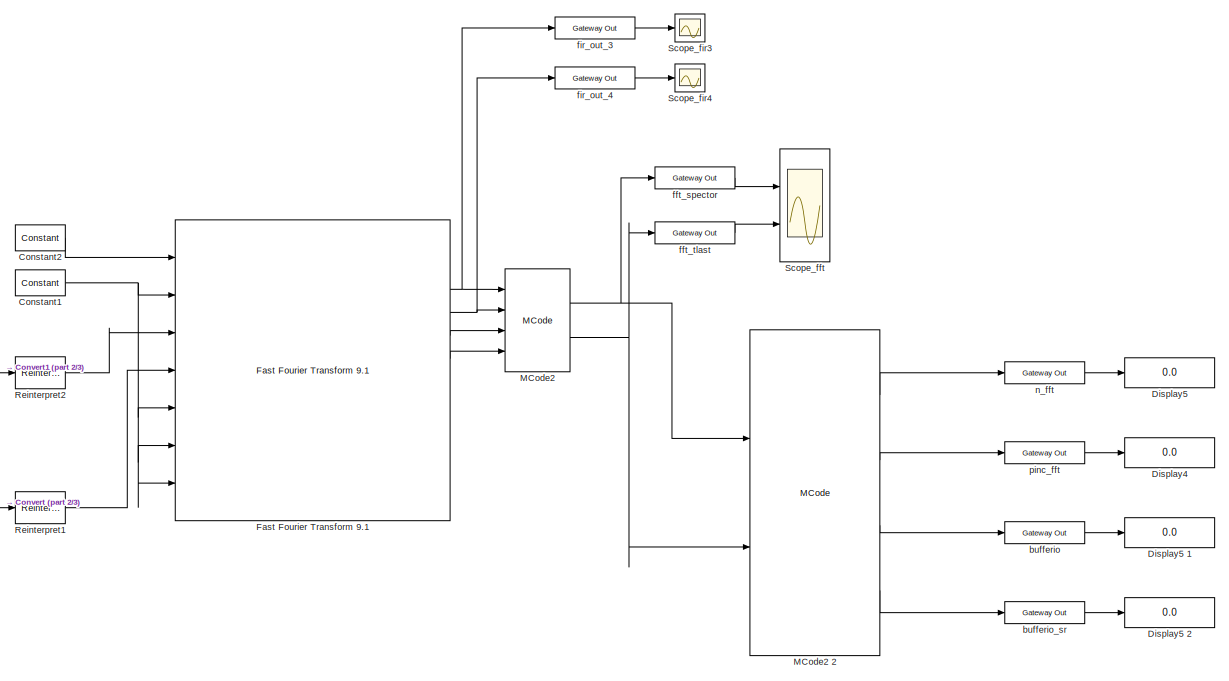
[diagram: root canvas - part 1/3, middle right region]
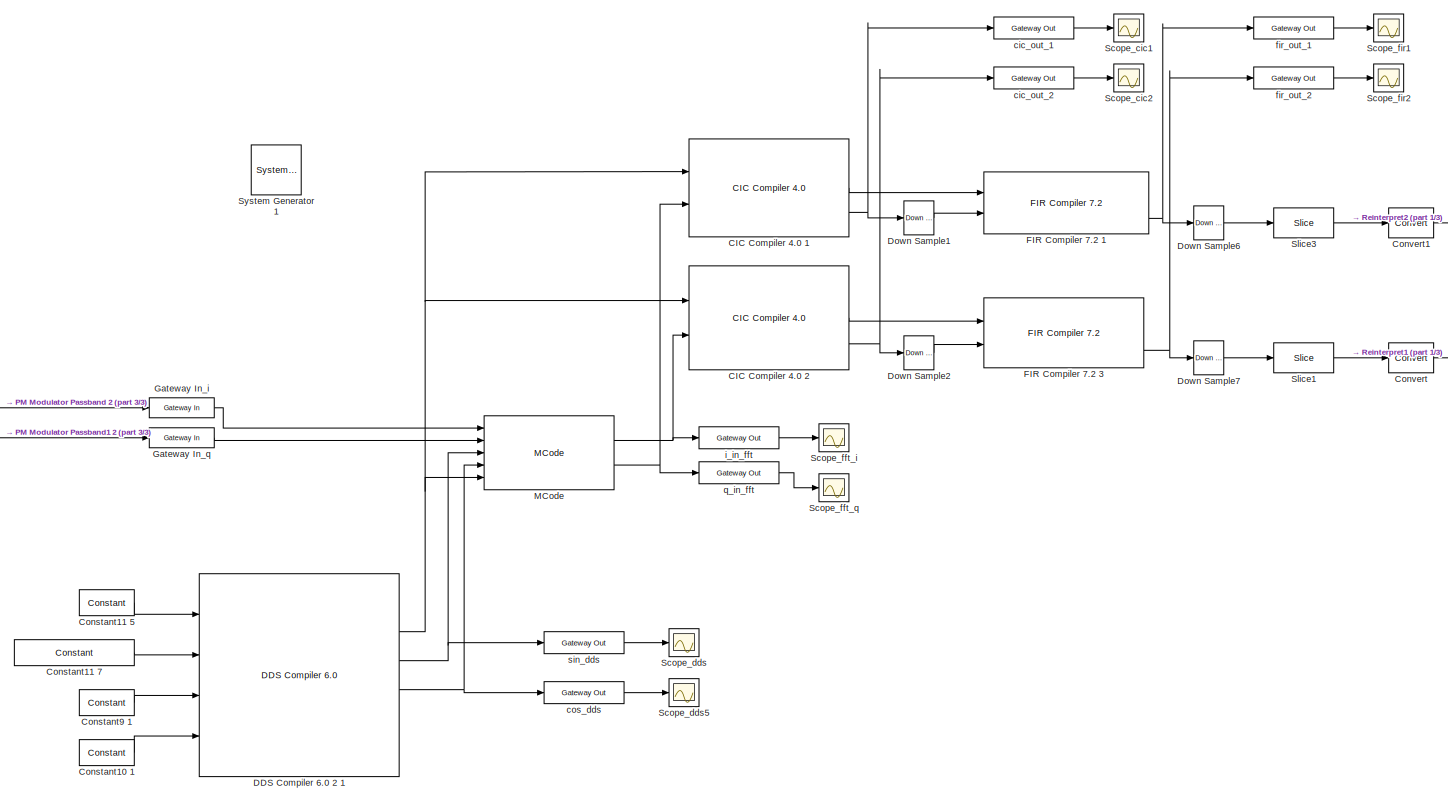
[diagram: root canvas - part 2/3, center side, full height]
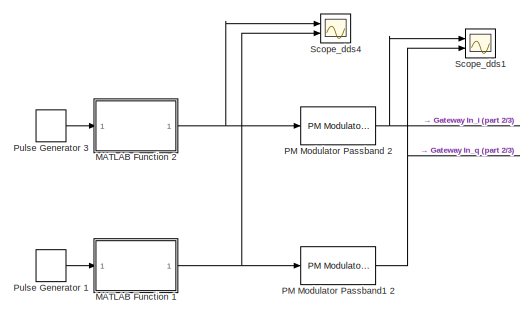
[diagram: root canvas - part 3/3, middle left region]
MODEL slx_6ac21d27d815
KIND model
CONFIG AbsTol = auto
CONFIG EnableMultiTasking = off
CONFIG FixedStep = auto
CONFIG MaxStep = auto
CONFIG MinStep = auto
CONFIG RelTol = 1e-3
CONFIG SampleTimeConstraint = Unconstrained
CONFIG Solver = VariableStepAuto
CONFIG SolverName = VariableStepAuto
CONFIG StartTime = 0.0
CONFIG StopTime = 0.01
BLOCK [Reference]  System Generator1  REF=xbsIndex_r4/ System Generator
  AttributesFormatString = System\nGenerator
  Ports = []
  SourceBlock = xbsIndex_r4/ System Generator
  SourceType = Xilinx System Generator Block
  Tag = genX
  UserDataPersistent = on
BLOCK [Reference] CIC Compiler 4.0 1   REF=xbsIndex_r4/CIC Compiler 4.0 
  Ports = [2, 3]
  SourceBlock = xbsIndex_r4/CIC Compiler 4.0
  SourceType = Xilinx CIC Compiler 4.0 Block
BLOCK [Reference] CIC Compiler 4.0 2   REF=xbsIndex_r4/CIC Compiler 4.0 
  Ports = [2, 3]
  SourceBlock = xbsIndex_r4/CIC Compiler 4.0
  SourceType = Xilinx CIC Compiler 4.0 Block
BLOCK [Reference] Constant1   REF=xbsIndex_r4/Constant
  Ports = [0, 1]
  SourceBlock = xbsIndex_r4/Constant
  SourceType = Xilinx Constant Block Block
BLOCK [Reference] Constant10 1  REF=xbsIndex_r4/Constant
  Ports = [0, 1]
  SourceBlock = xbsIndex_r4/Constant
  SourceType = Xilinx Constant Block Block
BLOCK [Reference] Constant11 5  REF=xbsIndex_r4/Constant
  Ports = [0, 1]
  SourceBlock = xbsIndex_r4/Constant
  SourceType = Xilinx Constant Block Block
BLOCK [Reference] Constant11 7  REF=xbsIndex_r4/Constant
  Ports = [0, 1]
  SourceBlock = xbsIndex_r4/Constant
  SourceType = Xilinx Constant Block Block
BLOCK [Reference] Constant2   REF=xbsIndex_r4/Constant
  Ports = [0, 1]
  SourceBlock = xbsIndex_r4/Constant
  SourceType = Xilinx Constant Block Block
BLOCK [Reference] Constant9 1  REF=xbsIndex_r4/Constant
  Ports = [0, 1]
  SourceBlock = xbsIndex_r4/Constant
  SourceType = Xilinx Constant Block Block
BLOCK [Reference] Convert   REF=xbsIndex_r4/Convert
  Ports = [1, 1]
  SourceBlock = xbsIndex_r4/Convert
  SourceType = Xilinx Type Converter Block
BLOCK [Reference] Convert1   REF=xbsIndex_r4/Convert
  Ports = [1, 1]
  SourceBlock = xbsIndex_r4/Convert
  SourceType = Xilinx Type Converter Block
BLOCK [Reference] DDS Compiler 6.0 2 1  REF=xbsIndex_r4/DDS Compiler 6.0 
  Ports = [4, 6]
  SourceBlock = xbsIndex_r4/DDS Compiler 6.0
  SourceType = Xilinx DDS Compiler 6.0 Block
BLOCK [Display] Display4 
  Decimation = 1
  Ports = [1]
BLOCK [Display] Display5 
  Decimation = 1
  Ports = [1]
BLOCK [Display] Display5 1
  Decimation = 1
  Ports = [1]
BLOCK [Display] Display5 2
  Decimation = 1
  Ports = [1]
BLOCK [Reference] Down Sample1   REF=xbsIndex_r4/Down Sample
  Ports = [1, 1]
  SourceBlock = xbsIndex_r4/Down Sample
  SourceType = Xilinx Down Sampler Block
BLOCK [Reference] Down Sample2   REF=xbsIndex_r4/Down Sample
  Ports = [1, 1]
  SourceBlock = xbsIndex_r4/Down Sample
  SourceType = Xilinx Down Sampler Block
BLOCK [Reference] Down Sample6   REF=xbsIndex_r4/Down Sample
  Ports = [1, 1]
  SourceBlock = xbsIndex_r4/Down Sample
  SourceType = Xilinx Down Sampler Block
BLOCK [Reference] Down Sample7   REF=xbsIndex_r4/Down Sample
  Ports = [1, 1]
  SourceBlock = xbsIndex_r4/Down Sample
  SourceType = Xilinx Down Sampler Block
BLOCK [Reference] FIR Compiler 7.2 1   REF=xbsIndex_r4/FIR Compiler 7.2 
  Ports = [2, 3]
  SourceBlock = xbsIndex_r4/FIR Compiler 7.2
  SourceType = Xilinx FIR Compiler 7.2 Block
BLOCK [Reference] FIR Compiler 7.2 3   REF=xbsIndex_r4/FIR Compiler 7.2 
  Ports = [2, 3]
  SourceBlock = xbsIndex_r4/FIR Compiler 7.2
  SourceType = Xilinx FIR Compiler 7.2 Block
BLOCK [Reference] Fast Fourier Transform 9.1   REF=xbsIndex_r4/Fast Fourier Transform 9.1 
  Ports = [7, 12]
  SourceBlock = xbsIndex_r4/Fast Fourier Transform 9.1
  SourceType = Xilinx Fast Fourier Transform 9.1  Block
BLOCK [Reference] Gateway In_i  REF=xbsIndex_r4/Gateway In
  Ports = [1, 1]
  SourceBlock = xbsIndex_r4/Gateway In
  SourceType = Xilinx Gateway In Block
BLOCK [Reference] Gateway In_q  REF=xbsIndex_r4/Gateway In
  Ports = [1, 1]
  SourceBlock = xbsIndex_r4/Gateway In
  SourceType = Xilinx Gateway In Block
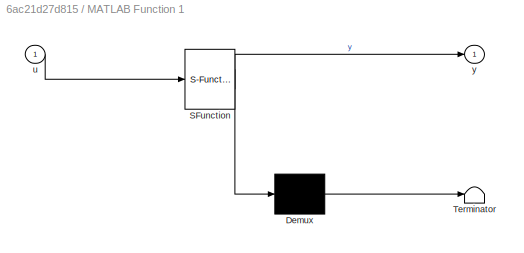
BLOCK [SubSystem] MATLAB Function 1
  ErrorFcn = Stateflow.Translate.translate
  PermitHierarchicalResolution = ExplicitOnly
  Ports = [1, 1]
  RequestExecContextInheritance = off
  SFBlockType = MATLAB Function
  TreatAsAtomicUnit = on
BLOCK [Demux] MATLAB Function 1/ Demux 
  Outputs = 1
  Ports = [1, 1]
BLOCK [S-Function] MATLAB Function 1/ SFunction 
  EnableBusSupport = on
  FunctionName = sf_sfun
  PortCounts = [1 2]
  Ports = [1, 2]
  SFcnIsStateOwnerBlock = off
  SFunctionDeploymentMode = off
  Tag = Stateflow S-Function ofur2 1
BLOCK [Terminator] MATLAB Function 1/ Terminator 
BLOCK [Inport] MATLAB Function 1/u
  IconDisplay = Port number
BLOCK [Outport] MATLAB Function 1/y
  IconDisplay = Port number
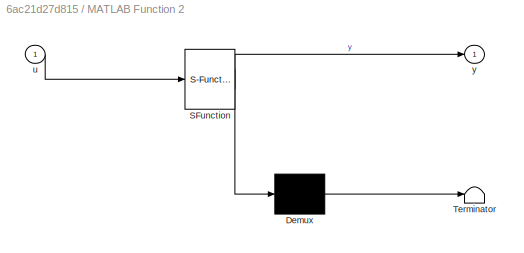
BLOCK [SubSystem] MATLAB Function 2
  ErrorFcn = Stateflow.Translate.translate
  PermitHierarchicalResolution = ExplicitOnly
  Ports = [1, 1]
  RequestExecContextInheritance = off
  SFBlockType = MATLAB Function
  TreatAsAtomicUnit = on
BLOCK [Demux] MATLAB Function 2/ Demux 
  Outputs = 1
  Ports = [1, 1]
BLOCK [S-Function] MATLAB Function 2/ SFunction 
  EnableBusSupport = on
  FunctionName = sf_sfun
  PortCounts = [1 2]
  Ports = [1, 2]
  SFcnIsStateOwnerBlock = off
  SFunctionDeploymentMode = off
  Tag = Stateflow S-Function ofur2 4
BLOCK [Terminator] MATLAB Function 2/ Terminator 
BLOCK [Inport] MATLAB Function 2/u
  IconDisplay = Port number
BLOCK [Outport] MATLAB Function 2/y
  IconDisplay = Port number
BLOCK [Reference] MCode   REF=xbsIndex_r4/MCode
  Ports = [5, 2]
  SourceBlock = xbsIndex_r4/MCode
  SourceType = Xilinx MCode Block Block
BLOCK [Reference] MCode2   REF=xbsIndex_r4/MCode
  Ports = [4, 2]
  SourceBlock = xbsIndex_r4/MCode
  SourceType = Xilinx MCode Block Block
BLOCK [Reference] MCode2 2  REF=xbsIndex_r4/MCode
  Ports = [2, 4]
  SourceBlock = xbsIndex_r4/MCode
  SourceType = Xilinx MCode Block Block
BLOCK [Reference] PM Modulator Passband 2  REF=commanapbnd3/PM
Modulator
Passband
  Ports = [1, 1]
  SourceBlock = commanapbnd3/PM\nModulator\nPassband
  SourceProductBaseCode = CM
  SourceProductName = Communications System Toolbox
  SourceType = PM Modulator Passband
BLOCK [Reference] PM Modulator Passband1 2  REF=commanapbnd3/PM
Modulator
Passband
  Ports = [1, 1]
  SourceBlock = commanapbnd3/PM\nModulator\nPassband
  SourceProductBaseCode = CM
  SourceProductName = Communications System Toolbox
  SourceType = PM Modulator Passband
BLOCK [DiscretePulseGenerator] Pulse Generator 1
  Period = 120
  PhaseDelay = 60
  Ports = [0, 1]
  PulseWidth = 60
  SampleTime = 1/30720000
BLOCK [DiscretePulseGenerator] Pulse Generator 3
  Period = 120
  Ports = [0, 1]
  PulseWidth = 60
  SampleTime = 1/30720000
BLOCK [Reference] Reinterpret1   REF=xbsIndex_r4/Reinterpret
  Ports = [1, 1]
  SourceBlock = xbsIndex_r4/Reinterpret
  SourceType = Xilinx Type Reinterpreter Block
BLOCK [Reference] Reinterpret2   REF=xbsIndex_r4/Reinterpret
  Ports = [1, 1]
  SourceBlock = xbsIndex_r4/Reinterpret
  SourceType = Xilinx Type Reinterpreter Block
BLOCK [Scope] Scope_cic1
  Floating = off
  NumInputPorts = 1
  Ports = [1]
  ScopeSpecificationString = Simulink.scopes.TimeScopeBlockCfg('CurrentConfiguration', extmgr.ConfigurationSet(extmgr.Configuration('Core','General UI',true,'DisplayFullSourceName',true),extmgr.Configuration('Core','Source UI',true),extmgr.Configuration('Sources','WiredSimulink',true,'DataLoggingVariableName','ScopeData1'),extmgr.Configuration('Visuals','Time Domain',true,'SerializedDisplays',{struct('MinYLimReal','-2270995.8...<+1814ch>
BLOCK [Scope] Scope_cic2
  Floating = off
  NumInputPorts = 1
  Ports = [1]
  ScopeSpecificationString = Simulink.scopes.TimeScopeBlockCfg('CurrentConfiguration', extmgr.ConfigurationSet(extmgr.Configuration('Core','General UI',true,'DisplayFullSourceName',true),extmgr.Configuration('Core','Source UI',true),extmgr.Configuration('Sources','WiredSimulink',true,'DataLoggingVariableName','ScopeData2'),extmgr.Configuration('Visuals','Time Domain',true,'SerializedDisplays',{struct('MinYLimReal','-2270995.8...<+1814ch>
BLOCK [Scope] Scope_dds
  Floating = off
  NumInputPorts = 1
  Ports = [1]
  ScopeSpecificationString = Simulink.scopes.TimeScopeBlockCfg('CurrentConfiguration', extmgr.ConfigurationSet(extmgr.Configuration('Core','General UI',true,'DisplayFullSourceName',true),extmgr.Configuration('Core','Source UI',true),extmgr.Configuration('Sources','WiredSimulink',true,'DataLoggingVariableName','ScopeData3'),extmgr.Configuration('Visuals','Time Domain',true,'SerializedDisplays',{struct('MinYLimReal','-1.24878',...<+1798ch>
BLOCK [Scope] Scope_dds1
  Floating = off
  NumInputPorts = 2
  Ports = [2]
  ScopeSpecificationString = Simulink.scopes.TimeScopeBlockCfg('CurrentConfiguration', extmgr.ConfigurationSet(extmgr.Configuration('Core','General UI',true,'DisplayFullSourceName',true),extmgr.Configuration('Core','Source UI',true),extmgr.Configuration('Sources','WiredSimulink',true,'DataLoggingVariableName','ScopeData4'),extmgr.Configuration('Visuals','Time Domain',true,'SerializedDisplays',{struct('MinYLimReal','-1.25','Ma...<+2489ch>
BLOCK [Scope] Scope_dds4
  Floating = off
  NumInputPorts = 2
  Ports = [2]
  ScopeSpecificationString = Simulink.scopes.TimeScopeBlockCfg('CurrentConfiguration', extmgr.ConfigurationSet(extmgr.Configuration('Core','General UI',true,'DisplayFullSourceName',true),extmgr.Configuration('Core','Source UI',true),extmgr.Configuration('Sources','WiredSimulink',true,'DataLoggingVariableName','ScopeData9'),extmgr.Configuration('Visuals','Time Domain',true,'SerializedDisplays',{struct('MinYLimReal','-0.875','M...<+2455ch>
BLOCK [Scope] Scope_dds5
  Floating = off
  NumInputPorts = 1
  Ports = [1]
  ScopeSpecificationString = Simulink.scopes.TimeScopeBlockCfg('CurrentConfiguration', extmgr.ConfigurationSet(extmgr.Configuration('Core','General UI',true,'DisplayFullSourceName',true),extmgr.Configuration('Core','Source UI',true),extmgr.Configuration('Sources','WiredSimulink',true,'DataLoggingVariableName','ScopeData10'),extmgr.Configuration('Visuals','Time Domain',true,'SerializedDisplays',{struct('MinYLimReal','-1.24878'...<+1793ch>
BLOCK [Scope] Scope_fft 
  Floating = off
  NumInputPorts = 2
  Ports = [2]
  ScopeSpecificationString = Simulink.scopes.TimeScopeBlockCfg('CurrentConfiguration', extmgr.ConfigurationSet(extmgr.Configuration('Core','General UI',true,'DisplayFullSourceName',true),extmgr.Configuration('Core','Source UI',true),extmgr.Configuration('Sources','WiredSimulink',true,'DataLoggingVariableName','ScopeData14'),extmgr.Configuration('Visuals','Time Domain',true,'SerializedDisplays',{struct('MinYLimReal','-4.25476'...<+1856ch>
BLOCK [Scope] Scope_fft_i 
  Floating = off
  NumInputPorts = 1
  Ports = [1]
  ScopeSpecificationString = Simulink.scopes.TimeScopeBlockCfg('CurrentConfiguration', extmgr.ConfigurationSet(extmgr.Configuration('Core','General UI',true,'DisplayFullSourceName',true),extmgr.Configuration('Core','Source UI',true),extmgr.Configuration('Sources','WiredSimulink',true,'DataLoggingVariableName','ScopeData15'),extmgr.Configuration('Visuals','Time Domain',true,'SerializedDisplays',{struct('MinYLimReal','-0.88291'...<+1809ch>
BLOCK [Scope] Scope_fft_q 
  Floating = off
  NumInputPorts = 1
  Ports = [1]
  ScopeSpecificationString = Simulink.scopes.TimeScopeBlockCfg('CurrentConfiguration', extmgr.ConfigurationSet(extmgr.Configuration('Core','General UI',true,'DisplayFullSourceName',true),extmgr.Configuration('Core','Source UI',true),extmgr.Configuration('Sources','WiredSimulink',true,'DataLoggingVariableName','ScopeData16'),extmgr.Configuration('Visuals','Time Domain',true,'SerializedDisplays',{struct('MinYLimReal','-0.54384'...<+1782ch>
BLOCK [Scope] Scope_fir1
  Floating = off
  NumInputPorts = 1
  Ports = [1]
  ScopeSpecificationString = Simulink.scopes.TimeScopeBlockCfg('CurrentConfiguration', extmgr.ConfigurationSet(extmgr.Configuration('Core','General UI',true,'DisplayFullSourceName',true),extmgr.Configuration('Core','Source UI',true),extmgr.Configuration('Sources','WiredSimulink',true,'DataLoggingVariableName','ScopeData17'),extmgr.Configuration('Visuals','Time Domain',true,'SerializedDisplays',{struct('MinYLimReal','-722477.3...<+1808ch>
BLOCK [Scope] Scope_fir2
  Floating = off
  NumInputPorts = 1
  Ports = [1]
  ScopeSpecificationString = Simulink.scopes.TimeScopeBlockCfg('CurrentConfiguration', extmgr.ConfigurationSet(extmgr.Configuration('Core','General UI',true,'DisplayFullSourceName',true),extmgr.Configuration('Core','Source UI',true),extmgr.Configuration('Sources','WiredSimulink',true,'DataLoggingVariableName','ScopeData18'),extmgr.Configuration('Visuals','Time Domain',true,'SerializedDisplays',{struct('MinYLimReal','-732274.6...<+1814ch>
BLOCK [Scope] Scope_fir3
  Floating = off
  NumInputPorts = 1
  Ports = [1]
  ScopeSpecificationString = Simulink.scopes.TimeScopeBlockCfg('CurrentConfiguration', extmgr.ConfigurationSet(extmgr.Configuration('Core','General UI',true,'DisplayFullSourceName',true),extmgr.Configuration('Core','Source UI',true),extmgr.Configuration('Sources','WiredSimulink',true,'DataLoggingVariableName','ScopeData19'),extmgr.Configuration('Visuals','Time Domain',true,'SerializedDisplays',{struct('MinYLimReal','-188171.5...<+1794ch>
BLOCK [Scope] Scope_fir4
  Floating = off
  NumInputPorts = 1
  Ports = [1]
  ScopeSpecificationString = Simulink.scopes.TimeScopeBlockCfg('CurrentConfiguration', extmgr.ConfigurationSet(extmgr.Configuration('Core','General UI',true,'DisplayFullSourceName',true),extmgr.Configuration('Core','Source UI',true),extmgr.Configuration('Sources','WiredSimulink',true),extmgr.Configuration('Visuals','Time Domain',true,'SerializedDisplays',{struct('MinYLimReal','-2270995.875','MaxYLimReal','252332.875','YLabelR...<+1775ch>
BLOCK [Reference] Slice1   REF=xbsIndex_r4/Slice
  Ports = [1, 1]
  SourceBlock = xbsIndex_r4/Slice
  SourceType = Xilinx Bit Slice Extractor Block
BLOCK [Reference] Slice3   REF=xbsIndex_r4/Slice
  Ports = [1, 1]
  SourceBlock = xbsIndex_r4/Slice
  SourceType = Xilinx Bit Slice Extractor Block
BLOCK [Reference] bufferio  REF=xbsIndex_r4/Gateway Out
  Ports = [1, 1]
  SourceBlock = xbsIndex_r4/Gateway Out
  SourceType = Xilinx Gateway Out Block
BLOCK [Reference] bufferio_sr  REF=xbsIndex_r4/Gateway Out
  Ports = [1, 1]
  SourceBlock = xbsIndex_r4/Gateway Out
  SourceType = Xilinx Gateway Out Block
BLOCK [Reference] cic_out_1  REF=xbsIndex_r4/Gateway Out
  Ports = [1, 1]
  SourceBlock = xbsIndex_r4/Gateway Out
  SourceType = Xilinx Gateway Out Block
BLOCK [Reference] cic_out_2  REF=xbsIndex_r4/Gateway Out
  Ports = [1, 1]
  SourceBlock = xbsIndex_r4/Gateway Out
  SourceType = Xilinx Gateway Out Block
BLOCK [Reference] cos_dds  REF=xbsIndex_r4/Gateway Out
  Ports = [1, 1]
  SourceBlock = xbsIndex_r4/Gateway Out
  SourceType = Xilinx Gateway Out Block
BLOCK [Reference] fft_spector  REF=xbsIndex_r4/Gateway Out
  Ports = [1, 1]
  SourceBlock = xbsIndex_r4/Gateway Out
  SourceType = Xilinx Gateway Out Block
BLOCK [Reference] fft_tlast  REF=xbsIndex_r4/Gateway Out
  Ports = [1, 1]
  SourceBlock = xbsIndex_r4/Gateway Out
  SourceType = Xilinx Gateway Out Block
BLOCK [Reference] fir_out_1  REF=xbsIndex_r4/Gateway Out
  Ports = [1, 1]
  SourceBlock = xbsIndex_r4/Gateway Out
  SourceType = Xilinx Gateway Out Block
BLOCK [Reference] fir_out_2  REF=xbsIndex_r4/Gateway Out
  Ports = [1, 1]
  SourceBlock = xbsIndex_r4/Gateway Out
  SourceType = Xilinx Gateway Out Block
BLOCK [Reference] fir_out_3  REF=xbsIndex_r4/Gateway Out
  Ports = [1, 1]
  SourceBlock = xbsIndex_r4/Gateway Out
  SourceType = Xilinx Gateway Out Block
BLOCK [Reference] fir_out_4  REF=xbsIndex_r4/Gateway Out
  Ports = [1, 1]
  SourceBlock = xbsIndex_r4/Gateway Out
  SourceType = Xilinx Gateway Out Block
BLOCK [Reference] i_in_fft   REF=xbsIndex_r4/Gateway Out
  Ports = [1, 1]
  SourceBlock = xbsIndex_r4/Gateway Out
  SourceType = Xilinx Gateway Out Block
BLOCK [Reference] n_fft  REF=xbsIndex_r4/Gateway Out
  Ports = [1, 1]
  SourceBlock = xbsIndex_r4/Gateway Out
  SourceType = Xilinx Gateway Out Block
BLOCK [Reference] pinc_fft   REF=xbsIndex_r4/Gateway Out
  Ports = [1, 1]
  SourceBlock = xbsIndex_r4/Gateway Out
  SourceType = Xilinx Gateway Out Block
BLOCK [Reference] q_in_fft   REF=xbsIndex_r4/Gateway Out
  Ports = [1, 1]
  SourceBlock = xbsIndex_r4/Gateway Out
  SourceType = Xilinx Gateway Out Block
BLOCK [Reference] sin_dds   REF=xbsIndex_r4/Gateway Out
  Ports = [1, 1]
  SourceBlock = xbsIndex_r4/Gateway Out
  SourceType = Xilinx Gateway Out Block
LINE CIC Compiler 4.0 1 :2 -> FIR Compiler 7.2 1 :1
NET CIC Compiler 4.0 1 :3 -> Down Sample1 :1, cic_out_1:1
LINE CIC Compiler 4.0 2 :2 -> FIR Compiler 7.2 3 :1
NET CIC Compiler 4.0 2 :3 -> Down Sample2 :1, cic_out_2:1
NET Constant1 :1 -> Fast Fourier Transform 9.1 :2, Fast Fourier Transform 9.1 :5, Fast Fourier Transform 9.1 :6, Fast Fourier Transform 9.1 :7
LINE Constant10 1:1 -> DDS Compiler 6.0 2 1:4
LINE Constant11 5:1 -> DDS Compiler 6.0 2 1:1
LINE Constant11 7:1 -> DDS Compiler 6.0 2 1:2
LINE Constant2 :1 -> Fast Fourier Transform 9.1 :1
LINE Constant9 1:1 -> DDS Compiler 6.0 2 1:3
LINE Convert :1 -> Reinterpret1 :1
LINE Convert1 :1 -> Reinterpret2 :1
NET DDS Compiler 6.0 2 1:2 -> CIC Compiler 4.0 1 :1, CIC Compiler 4.0 2 :1, MCode :5
NET DDS Compiler 6.0 2 1:3 -> MCode :3, sin_dds :1
NET DDS Compiler 6.0 2 1:4 -> MCode :4, cos_dds:1
LINE Down Sample1 :1 -> FIR Compiler 7.2 1 :2
LINE Down Sample2 :1 -> FIR Compiler 7.2 3 :2
LINE Down Sample6 :1 -> Slice3 :1
LINE Down Sample7 :1 -> Slice1 :1
NET FIR Compiler 7.2 1 :3 -> Down Sample6 :1, fir_out_1:1
NET FIR Compiler 7.2 3 :3 -> Down Sample7 :1, fir_out_2:1
NET Fast Fourier Transform 9.1 :3 -> MCode2 :1, fir_out_3:1
NET Fast Fourier Transform 9.1 :4 -> MCode2 :2, fir_out_4:1
LINE Fast Fourier Transform 9.1 :5 -> MCode2 :3
LINE Fast Fourier Transform 9.1 :6 -> MCode2 :4
LINE Gateway In_i:1 -> MCode :1
LINE Gateway In_q:1 -> MCode :2
NET MATLAB Function 1:1 -> PM Modulator Passband1 2:1, Scope_dds4:2
NET MATLAB Function 2:1 -> PM Modulator Passband 2:1, Scope_dds4:1
NET MCode :1 -> CIC Compiler 4.0 2 :2, i_in_fft :1
NET MCode :2 -> CIC Compiler 4.0 1 :2, q_in_fft :1
LINE MCode2 2:1 -> n_fft:1
LINE MCode2 2:2 -> pinc_fft :1
LINE MCode2 2:3 -> bufferio:1
LINE MCode2 2:4 -> bufferio_sr:1
NET MCode2 :1 -> MCode2 2:1, fft_spector:1
NET MCode2 :2 -> MCode2 2:2, fft_tlast:1
NET PM Modulator Passband 2:1 -> Gateway In_i:1, Scope_dds1:1
NET PM Modulator Passband1 2:1 -> Gateway In_q:1, Scope_dds1:2
LINE Pulse Generator 1:1 -> MATLAB Function 1:1
LINE Pulse Generator 3:1 -> MATLAB Function 2:1
LINE Reinterpret1 :1 -> Fast Fourier Transform 9.1 :4
LINE Reinterpret2 :1 -> Fast Fourier Transform 9.1 :3
LINE Slice1 :1 -> Convert :1
LINE Slice3 :1 -> Convert1 :1
LINE bufferio:1 -> Display5 1:1
LINE bufferio_sr:1 -> Display5 2:1
LINE cic_out_1:1 -> Scope_cic1:1
LINE cic_out_2:1 -> Scope_cic2:1
LINE cos_dds:1 -> Scope_dds5:1
LINE fft_spector:1 -> Scope_fft :1
LINE fft_tlast:1 -> Scope_fft :2
LINE fir_out_1:1 -> Scope_fir1:1
LINE fir_out_2:1 -> Scope_fir2:1
LINE fir_out_3:1 -> Scope_fir3:1
LINE fir_out_4:1 -> Scope_fir4:1
LINE i_in_fft :1 -> Scope_fft_i :1
LINE n_fft:1 -> Display5 :1
LINE pinc_fft :1 -> Display4 :1
LINE q_in_fft :1 -> Scope_fft_q :1
LINE sin_dds :1 -> Scope_dds:1
note: NET lines group one-source signal fan-out (src -> all destinations, sorted); 1:1 wires keep LINE
CHART MATLAB Function 
1 states=1 transitions=1
  STATE_LABEL 'eML_blk_kernel()'
  STATE_LABEL 'SCRIPT:\nfunction y = fcn(u)\n\npersistent B\npersistent D\npersistent E\npersistent C\npersistent F\npersistent n\n\npersistent A,\n\nA = [1 7 7 1 7 3 5 5 5 5 5 1 3 3 3 3 1 1 3 5 3 3 7 7 5 5 5 3 7 3 3 3];\n%A = [1 1 1 0 1 0 1 1 1 0 0 1 0 0 0 0];\n\n%A = [0.707 0.707 0.707 0.707 0.707 -0.707 -0.707 -0.707];\n\nif isempty(B)\n B = 0;\nend\n\nif isempty(D)\n D = 0;\nend\n\nif isempty(C)\n C = 0;\nend\n\nif isempty(F)\n F = 0;\nen...<+227ch>'
CHART MATLAB Function 
2 states=1 transitions=1
  STATE_LABEL 'eML_blk_kernel()'
  STATE_LABEL 'SCRIPT:\nfunction y = fcn(u)\n\npersistent B\npersistent D\npersistent E\npersistent C\npersistent F\npersistent n\n\npersistent A,\n\nA = [1 7 7 1 7 3 5 5 5 5 5 1 3 3 3 3 1 1 3 5 3 3 7 7 5 5 5 3 7 3 3 3];\n%A = [1 1 1 0 1 0 1 1 1 0 0 1 0 0 0 0];\n\n%A = [0.707 0.707 0.707 0.707 0.707 -0.707 -0.707 -0.707];\n\nif isempty(B)\n B = 0;\nend\n\nif isempty(D)\n D = 0;\nend\n\nif isempty(C)\n C = 0;\nend\n\nif isempty(F)\n F = 0;\nen...<+227ch>'
